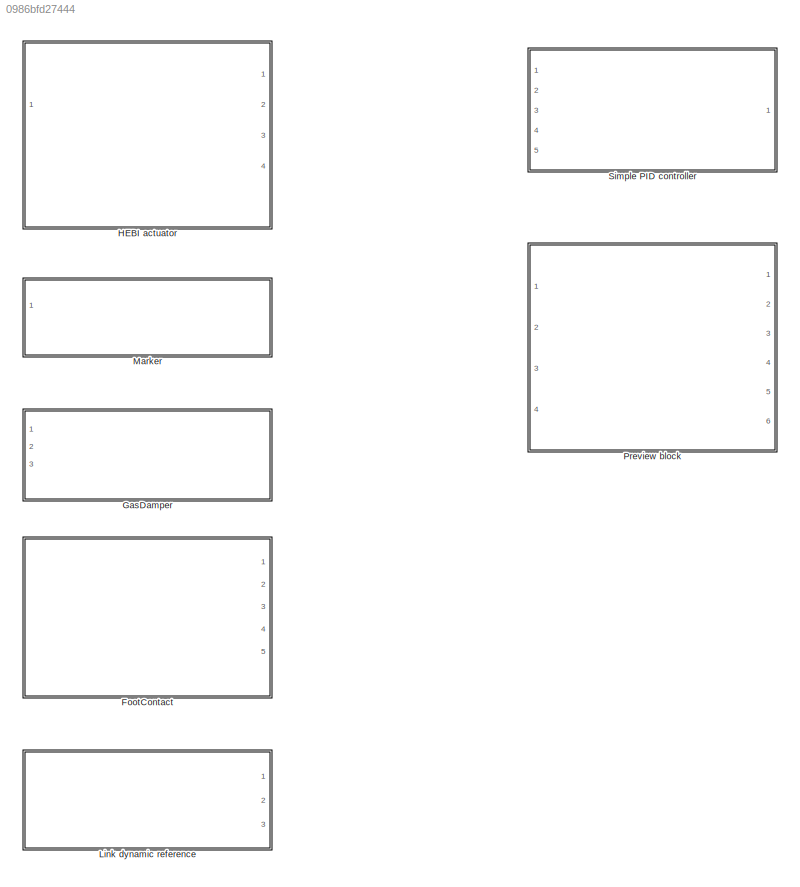
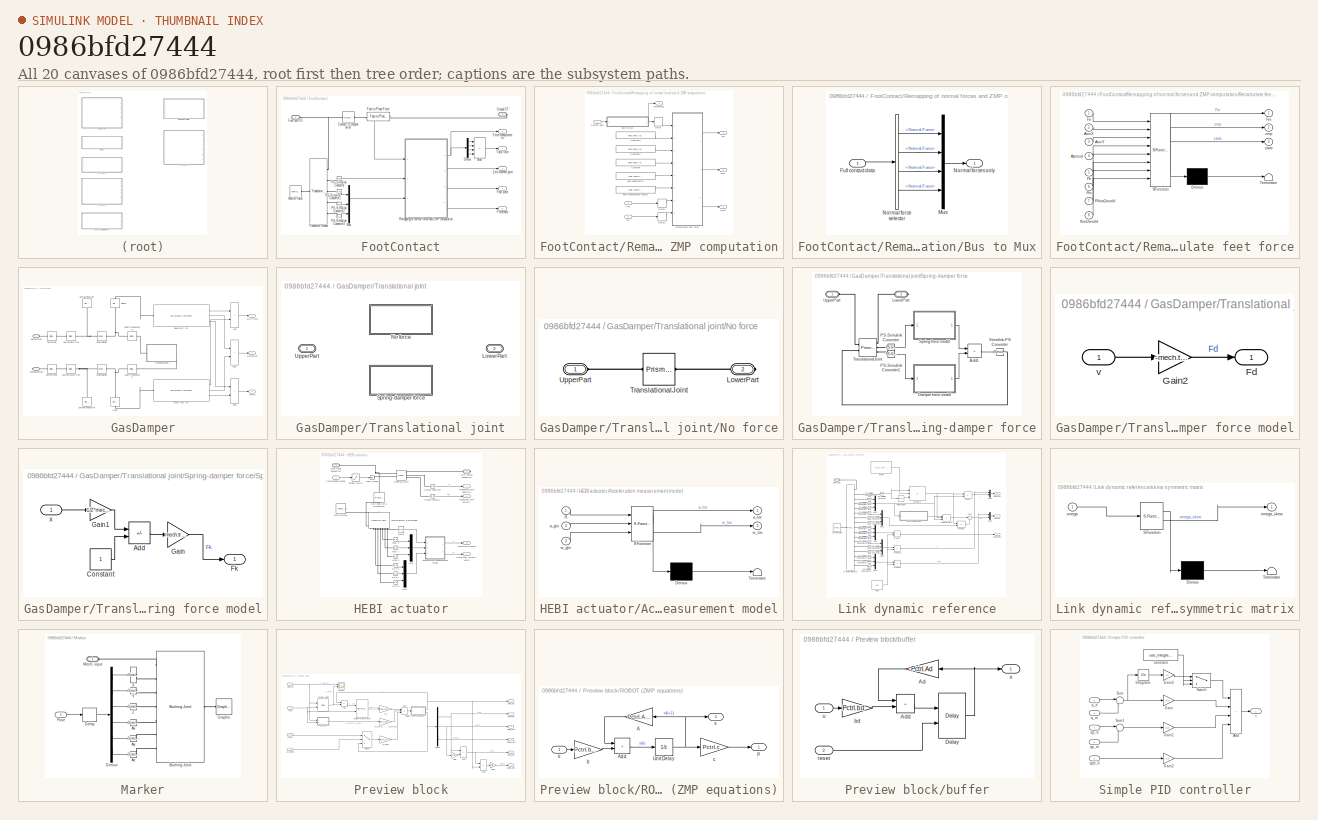
[diagram: thumbnail index - all 20 canvases of the model, root first then tree order]
MODEL slx_0986bfd27444
KIND library
CONFIG AbsTol = auto
CONFIG EnableMultiTasking = off
CONFIG FixedStep = auto
CONFIG MaxStep = auto
CONFIG MinStep = auto
CONFIG RelTol = 1e-3
CONFIG SampleTimeConstraint = Unconstrained
CONFIG SolverName = VariableStepAuto
CONFIG StartTime = 0.0
CONFIG StopTime = 10.0
BLOCK [SubSystem] FootContact
  Ports = [0, 5, 0, 0, 0, 1, 1]
  RequestExecContextInheritance = off
BLOCK [Sum] FootContact/Add
  IconShape = rectangular
  Inputs = 4
  Ports = [4, 1]
BLOCK [Reference] FootContact/ContactTfCompensation  REF=sm_lib/Frames and
Transforms/Rigid
Transform
  NameLocation = top
  Ports = [0, 0, 0, 0, 0, 1, 1]
  SourceBlock = sm_lib/Frames and\nTransforms/Rigid\nTransform
  SourceProductBaseCode = MS
  SourceType = Rigid\nTransform
BLOCK [Demux] FootContact/Demux
  Ports = [1, 4]
BLOCK [Reference] FootContact/Face to Plane Force  REF=Contact_Forces_Lib/3D/Composite
Forces/Face to Plane Force
  NameLocation = top
  Ports = [0, 1, 0, 0, 0, 1, 1]
  SourceBlock = Contact_Forces_Lib/3D/Composite\nForces/Face to Plane Force
  SourceProductName = Simscape Multibody Contact Forces Library
  SourceType = Face to Plane Force
BLOCK [PMIOPort] FootContact/Foot sole CF
  Side = Left
BLOCK [Outport] FootContact/Foot state
  Port = 4
BLOCK [Outport] FootContact/Force measurements
BLOCK [Outport] FootContact/Freference
  Port = 5
BLOCK [PMIOPort] FootContact/Ground CF
  Port = 2
  Side = Right
BLOCK [Mux] FootContact/Mux
  DisplayOption = bar
  Inputs = 3
  Ports = [3, 1]
BLOCK [Reference] FootContact/PS-Simulink Converter  REF=nesl_utility/PS-Simulink
Converter
  Ports = [0, 1, 0, 0, 0, 1]
  SourceBlock = nesl_utility/PS-Simulink\nConverter
  SourceProductName = Utilities
  SourceType = PS-Simulink\nConverter
BLOCK [Reference] FootContact/PS-Simulink Converter1  REF=nesl_utility/PS-Simulink
Converter
  Ports = [0, 1, 0, 0, 0, 1]
  SourceBlock = nesl_utility/PS-Simulink\nConverter
  SourceProductName = Utilities
  SourceType = PS-Simulink\nConverter
BLOCK [Reference] FootContact/PS-Simulink Converter2  REF=nesl_utility/PS-Simulink
Converter
  Ports = [0, 1, 0, 0, 0, 1]
  SourceBlock = nesl_utility/PS-Simulink\nConverter
  SourceProductName = Utilities
  SourceType = PS-Simulink\nConverter
BLOCK [Reference] FootContact/PS-Simulink Converter3  REF=nesl_utility/PS-Simulink
Converter
  Ports = [0, 1, 0, 0, 0, 1]
  SourceBlock = nesl_utility/PS-Simulink\nConverter
  SourceProductName = Utilities
  SourceType = PS-Simulink\nConverter
BLOCK [SubSystem] FootContact/Remapping of normal forces and ZMP computation
  Ports = [3, 4]
  RequestExecContextInheritance = off
BLOCK [SubSystem] FootContact/Remapping of normal forces and ZMP computation/Bus to Mux
  Ports = [1, 1]
  RequestExecContextInheritance = off
BLOCK [Inport] FootContact/Remapping of normal forces and ZMP computation/Bus to Mux/Full contact data
BLOCK [Mux] FootContact/Remapping of normal forces and ZMP computation/Bus to Mux/Mux
  DisplayOption = bar
  Ports = [4, 1]
BLOCK [BusSelector] FootContact/Remapping of normal forces and ZMP computation/Bus to Mux/Normal force selector
  OutputSignals = fz1.Normal Force,fz2.Normal Force,fz3.Normal Force,fz4.Normal Force
  Ports = [1, 4]
BLOCK [Outport] FootContact/Remapping of normal forces and ZMP computation/Bus to Mux/Normal forces only
BLOCK [Constant] FootContact/Remapping of normal forces and ZMP computation/Constant
  Value = foot.zmp.Ae.finv
BLOCK [Constant] FootContact/Remapping of normal forces and ZMP computation/Constant2
  Value = foot.zmp.Ae.yinv
BLOCK [Constant] FootContact/Remapping of normal forces and ZMP computation/Constant3
  Value = foot.zmp.Ae.xinv
BLOCK [Inport] FootContact/Remapping of normal forces and ZMP computation/Contact data
BLOCK [Delay] FootContact/Remapping of normal forces and ZMP computation/Delay
  DelayLength = 0
  InitialCondition = 0
  InputPortMap = u0
  Ports = [1, 1]
  SampleTime = Ts
BLOCK [Delay] FootContact/Remapping of normal forces and ZMP computation/Delay1
  DelayLength = 0
  InitialCondition = 0
  InputPortMap = u0
  Ports = [1, 1]
  SampleTime = Ts
BLOCK [Delay] FootContact/Remapping of normal forces and ZMP computation/Delay2
  DelayLength = 0
  InitialCondition = 0
  InputPortMap = u0
  Ports = [1, 1]
  SampleTime = Ts
BLOCK [Outport] FootContact/Remapping of normal forces and ZMP computation/Fm
BLOCK [Constant] FootContact/Remapping of normal forces and ZMP computation/Foot edge points
  Value = foot.fsen.Pedge
BLOCK [Constant] FootContact/Remapping of normal forces and ZMP computation/Foot measurement points
  Value = foot.fsen.Pmeas
BLOCK [Outport] FootContact/Remapping of normal forces and ZMP computation/Freference
  Port = 4
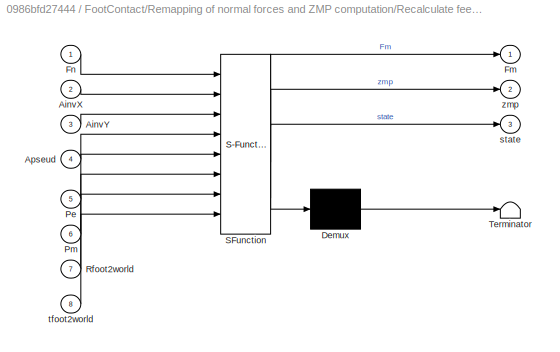
BLOCK [SubSystem] FootContact/Remapping of normal forces and ZMP computation/Recalculate feet force
  ErrorFcn = Stateflow.Translate.translate
  PermitHierarchicalResolution = ExplicitOnly
  Ports = [8, 3]
  RequestExecContextInheritance = off
  SFBlockType = MATLAB Function
  TreatAsAtomicUnit = on
BLOCK [Demux] FootContact/Remapping of normal forces and ZMP computation/Recalculate feet force/ Demux 
  Outputs = 1
  Ports = [1, 1]
BLOCK [S-Function] FootContact/Remapping of normal forces and ZMP computation/Recalculate feet force/ SFunction 
  EnableBusSupport = off
  FunctionName = sf_sfun
  PortCounts = [8 4]
  Ports = [8, 4]
  SFcnIsStateOwnerBlock = off
  SFunctionDeploymentMode = off
  Tag = Stateflow S-Function 1
BLOCK [Terminator] FootContact/Remapping of normal forces and ZMP computation/Recalculate feet force/ Terminator 
BLOCK [Inport] FootContact/Remapping of normal forces and ZMP computation/Recalculate feet force/AinvX
  Port = 2
BLOCK [Inport] FootContact/Remapping of normal forces and ZMP computation/Recalculate feet force/AinvY
  Port = 3
BLOCK [Inport] FootContact/Remapping of normal forces and ZMP computation/Recalculate feet force/Apseud
  Port = 4
BLOCK [Outport] FootContact/Remapping of normal forces and ZMP computation/Recalculate feet force/Fm
BLOCK [Inport] FootContact/Remapping of normal forces and ZMP computation/Recalculate feet force/Fn
BLOCK [Inport] FootContact/Remapping of normal forces and ZMP computation/Recalculate feet force/Pe
  Port = 5
BLOCK [Inport] FootContact/Remapping of normal forces and ZMP computation/Recalculate feet force/Pm
  Port = 6
BLOCK [Inport] FootContact/Remapping of normal forces and ZMP computation/Recalculate feet force/Rfoot2world
  Port = 7
BLOCK [Outport] FootContact/Remapping of normal forces and ZMP computation/Recalculate feet force/state
  Port = 3
BLOCK [Inport] FootContact/Remapping of normal forces and ZMP computation/Recalculate feet force/tfoot2world
  Port = 8
BLOCK [Outport] FootContact/Remapping of normal forces and ZMP computation/Recalculate feet force/zmp
  Port = 2
BLOCK [Inport] FootContact/Remapping of normal forces and ZMP computation/Rot
  Port = 2
BLOCK [Inport] FootContact/Remapping of normal forces and ZMP computation/Tra
  Port = 3
BLOCK [Outport] FootContact/Remapping of normal forces and ZMP computation/state
  Port = 3
BLOCK [Outport] FootContact/Remapping of normal forces and ZMP computation/zmp
  Port = 2
BLOCK [Outport] FootContact/Total force
  Port = 2
BLOCK [Reference] FootContact/Transform Sensor  REF=sm_lib/Frames and
Transforms/Transform
Sensor
  Ports = [0, 0, 0, 0, 0, 1, 5]
  SourceBlock = sm_lib/Frames and\nTransforms/Transform\nSensor
  SourceProductBaseCode = MS
  SourceType = Transform\nSensor
BLOCK [Reference] FootContact/World Frame  REF=sm_lib/Frames and
Transforms/World Frame
  Ports = [0, 0, 0, 0, 0, 0, 1]
  SourceBlock = sm_lib/Frames and\nTransforms/World Frame
  SourceProductBaseCode = MS
  SourceType = World Frame
BLOCK [Outport] FootContact/Zero moment point
  Port = 3
BLOCK [SubSystem] GasDamper
  Ports = [0, 3, 0, 0, 0, 1, 1]
  RequestExecContextInheritance = off
BLOCK [Sum] GasDamper/Add
  IconShape = rectangular
  Ports = [2, 1]
BLOCK [Sum] GasDamper/Add1
  IconShape = rectangular
  Ports = [2, 1]
BLOCK [Sum] GasDamper/Add2
  IconShape = rectangular
  Ports = [2, 1]
BLOCK [Outport] GasDamper/COM-mass
BLOCK [Reference] GasDamper/DamperHip  REF=sm_lib/Frames and
Transforms/Rigid
Transform
  Ports = [0, 0, 0, 0, 0, 1, 1]
  SourceBlock = sm_lib/Frames and\nTransforms/Rigid\nTransform
  SourceProductBaseCode = MS
  SourceType = Rigid\nTransform
BLOCK [Reference] GasDamper/DamperHipOffset  REF=sm_lib/Frames and
Transforms/Rigid
Transform
  Ports = [0, 0, 0, 0, 0, 1, 1]
  SourceBlock = sm_lib/Frames and\nTransforms/Rigid\nTransform
  SourceProductBaseCode = MS
  SourceType = Rigid\nTransform
BLOCK [Reference] GasDamper/DamperHipScrew  REF=sm_lib/Body Elements/File Solid
  NameLocation = left
  Ports = [0, 0, 0, 0, 0, 0, 1]
  SourceBlock = sm_lib/Body Elements/File Solid
  SourceProductBaseCode = MS
  SourceType = File Solid
BLOCK [Reference] GasDamper/DamperKnee  REF=sm_lib/Frames and
Transforms/Rigid
Transform
  Ports = [0, 0, 0, 0, 0, 1, 1]
  SourceBlock = sm_lib/Frames and\nTransforms/Rigid\nTransform
  SourceProductBaseCode = MS
  SourceType = Rigid\nTransform
BLOCK [Reference] GasDamper/DamperKneeOffset  REF=sm_lib/Frames and
Transforms/Rigid
Transform
  Ports = [0, 0, 0, 0, 0, 1, 1]
  SourceBlock = sm_lib/Frames and\nTransforms/Rigid\nTransform
  SourceProductBaseCode = MS
  SourceType = Rigid\nTransform
BLOCK [Reference] GasDamper/DamperKneeScrew  REF=sm_lib/Body Elements/File Solid
  NameLocation = left
  Ports = [0, 0, 0, 0, 0, 0, 1]
  SourceBlock = sm_lib/Body Elements/File Solid
  SourceProductBaseCode = MS
  SourceType = File Solid
BLOCK [Outport] GasDamper/Forces
  Port = 3
BLOCK [PMIOPort] GasDamper/HipConnection
  Side = Left
BLOCK [Reference] GasDamper/Insert  REF=sm_lib/Body Elements/File Solid
  NameLocation = right
  Ports = [0, 0, 0, 0, 0, 1, 1]
  SourceBlock = sm_lib/Body Elements/File Solid
  SourceProductBaseCode = MS
  SourceType = File Solid
BLOCK [Reference] GasDamper/Insert dyn. ref.  REF=$bdroot/Link dynamic reference
  Ports = [0, 3, 0, 0, 0, 1]
  SourceBlock = $bdroot/Link dynamic reference
BLOCK [PMIOPort] GasDamper/KneeConnection
  NameLocation = top
  Port = 2
  Side = Right
BLOCK [Reference] GasDamper/LowerBallJoint  REF=sm_lib/Joints/Spherical
Joint
  Ports = [0, 0, 0, 0, 0, 1, 1]
  SourceBlock = sm_lib/Joints/Spherical\nJoint
  SourceProductBaseCode = MS
  SourceType = Spherical\nJoint
BLOCK [Reference] GasDamper/LowerTranslationalTf  REF=sm_lib/Frames and
Transforms/Rigid
Transform
  Ports = [0, 0, 0, 0, 0, 1, 1]
  SourceBlock = sm_lib/Frames and\nTransforms/Rigid\nTransform
  SourceProductBaseCode = MS
  SourceType = Rigid\nTransform
BLOCK [Outport] GasDamper/Momentum
  Port = 2
BLOCK [Reference] GasDamper/Sleeve  REF=sm_lib/Body Elements/File Solid
  NameLocation = right
  Ports = [0, 0, 0, 0, 0, 1, 1]
  SourceBlock = sm_lib/Body Elements/File Solid
  SourceProductBaseCode = MS
  SourceType = File Solid
BLOCK [Reference] GasDamper/Sleeve dyn. ref.  REF=$bdroot/Link dynamic reference
  Ports = [0, 3, 0, 0, 0, 1]
  SourceBlock = $bdroot/Link dynamic reference
BLOCK [SubSystem] GasDamper/Translational joint
  Ports = [0, 0, 0, 0, 0, 1, 1]
  RequestExecContextInheritance = off
  Variant = on
BLOCK [PMIOPort] GasDamper/Translational joint/LowerPart
  Port = 2
  Side = Right
BLOCK [SubSystem] GasDamper/Translational joint/No force
  Ports = [0, 0, 0, 0, 0, 1, 1]
  RequestExecContextInheritance = off
  VariantControl = simulate_gas_sd == 0
BLOCK [PMIOPort] GasDamper/Translational joint/No force/LowerPart
  Port = 2
  Side = Right
BLOCK [Reference] GasDamper/Translational joint/No force/TranslationalJoint  REF=sm_lib/Joints/Prismatic
Joint
  NameLocation = top
  Ports = [0, 0, 0, 0, 0, 1, 1]
  SourceBlock = sm_lib/Joints/Prismatic\nJoint
  SourceProductBaseCode = MS
  SourceType = Prismatic\nJoint
BLOCK [PMIOPort] GasDamper/Translational joint/No force/UpperPart
  Side = Left
BLOCK [SubSystem] GasDamper/Translational joint/Spring-damper force
  Ports = [0, 0, 0, 0, 0, 1, 1]
  RequestExecContextInheritance = off
  VariantControl = simulate_gas_sd == 1
BLOCK [Sum] GasDamper/Translational joint/Spring-damper force/Add1
  IconShape = rectangular
  Ports = [2, 1]
BLOCK [SubSystem] GasDamper/Translational joint/Spring-damper force/Damper force model
  Ports = [1, 1]
  RequestExecContextInheritance = off
BLOCK [Outport] GasDamper/Translational joint/Spring-damper force/Damper force model/Fd
BLOCK [Gain] GasDamper/Translational joint/Spring-damper force/Damper force model/Gain2
  Gain = -mech.tra.mod.D
BLOCK [Inport] GasDamper/Translational joint/Spring-damper force/Damper force model/v
BLOCK [PMIOPort] GasDamper/Translational joint/Spring-damper force/LowerPart
  Port = 2
  Side = Right
BLOCK [Reference] GasDamper/Translational joint/Spring-damper force/PS-Simulink Converter  REF=nesl_utility/PS-Simulink
Converter
  Ports = [0, 1, 0, 0, 0, 1]
  SourceBlock = nesl_utility/PS-Simulink\nConverter
  SourceProductName = Utilities
  SourceType = PS-Simulink\nConverter
BLOCK [Reference] GasDamper/Translational joint/Spring-damper force/PS-Simulink Converter1  REF=nesl_utility/PS-Simulink
Converter
  Ports = [0, 1, 0, 0, 0, 1]
  SourceBlock = nesl_utility/PS-Simulink\nConverter
  SourceProductName = Utilities
  SourceType = PS-Simulink\nConverter
BLOCK [Reference] GasDamper/Translational joint/Spring-damper force/Simulink-PS Converter  REF=nesl_utility/Simulink-PS
Converter
  Ports = [1, 0, 0, 0, 0, 0, 1]
  SourceBlock = nesl_utility/Simulink-PS\nConverter
  SourceProductName = Utilities
  SourceType = Simulink-PS\nConverter
BLOCK [SubSystem] GasDamper/Translational joint/Spring-damper force/Spring force model
  Ports = [1, 1]
  RequestExecContextInheritance = off
BLOCK [Sum] GasDamper/Translational joint/Spring-damper force/Spring force model/Add
  IconShape = rectangular
  Inputs = -+
  Ports = [2, 1]
BLOCK [Constant] GasDamper/Translational joint/Spring-damper force/Spring force model/Constant
BLOCK [Outport] GasDamper/Translational joint/Spring-damper force/Spring force model/Fk
BLOCK [Gain] GasDamper/Translational joint/Spring-damper force/Spring force model/Gain
  Gain = mech.tra.mod.F0
BLOCK [Gain] GasDamper/Translational joint/Spring-damper force/Spring force model/Gain1
  Gain = 1/2*mech.tra.mod.L0
BLOCK [Inport] GasDamper/Translational joint/Spring-damper force/Spring force model/x
BLOCK [Reference] GasDamper/Translational joint/Spring-damper force/TranslationalJoint  REF=sm_lib/Joints/Prismatic
Joint
  Ports = [0, 0, 0, 0, 0, 2, 3]
  SourceBlock = sm_lib/Joints/Prismatic\nJoint
  SourceProductBaseCode = MS
  SourceType = Prismatic\nJoint
BLOCK [PMIOPort] GasDamper/Translational joint/Spring-damper force/UpperPart
  Side = Left
BLOCK [PMIOPort] GasDamper/Translational joint/UpperPart
  Side = Left
BLOCK [Reference] GasDamper/UpperBallJoint  REF=sm_lib/Joints/Spherical
Joint
  Ports = [0, 0, 0, 0, 0, 1, 1]
  SourceBlock = sm_lib/Joints/Spherical\nJoint
  SourceProductBaseCode = MS
  SourceType = Spherical\nJoint
BLOCK [Reference] GasDamper/UpperTranslationalTf  REF=sm_lib/Frames and
Transforms/Rigid
Transform
  Ports = [0, 0, 0, 0, 0, 1, 1]
  SourceBlock = sm_lib/Frames and\nTransforms/Rigid\nTransform
  SourceProductBaseCode = MS
  SourceType = Rigid\nTransform
BLOCK [SubSystem] HEBI actuator
  Ports = [1, 4, 0, 0, 0, 1, 1]
  RequestExecContextInheritance = off
BLOCK [Reference] HEBI actuator/Accel x  REF=nesl_utility/PS-Simulink
Converter
  Ports = [0, 1, 0, 0, 0, 1]
  SourceBlock = nesl_utility/PS-Simulink\nConverter
  SourceProductName = Utilities
  SourceType = PS-Simulink\nConverter
BLOCK [Reference] HEBI actuator/Accel y  REF=nesl_utility/PS-Simulink
Converter
  Ports = [0, 1, 0, 0, 0, 1]
  SourceBlock = nesl_utility/PS-Simulink\nConverter
  SourceProductName = Utilities
  SourceType = PS-Simulink\nConverter
BLOCK [Reference] HEBI actuator/Accel z  REF=nesl_utility/PS-Simulink
Converter
  Ports = [0, 1, 0, 0, 0, 1]
  SourceBlock = nesl_utility/PS-Simulink\nConverter
  SourceProductName = Utilities
  SourceType = PS-Simulink\nConverter
BLOCK [SubSystem] HEBI actuator/Acceleration measurement model
  ErrorFcn = Stateflow.Translate.translate
  PermitHierarchicalResolution = ExplicitOnly
  Ports = [3, 2]
  RequestExecContextInheritance = off
  SFBlockType = MATLAB Function
  TreatAsAtomicUnit = on
BLOCK [Demux] HEBI actuator/Acceleration measurement model/ Demux 
  Outputs = 1
  Ports = [1, 1]
BLOCK [S-Function] HEBI actuator/Acceleration measurement model/ SFunction 
  EnableBusSupport = off
  FunctionName = sf_sfun
  PortCounts = [3 3]
  Ports = [3, 3]
  SFcnIsStateOwnerBlock = off
  SFunctionDeploymentMode = off
  Tag = Stateflow S-Function 2
BLOCK [Terminator] HEBI actuator/Acceleration measurement model/ Terminator 
BLOCK [Inport] HEBI actuator/Acceleration measurement model/R
BLOCK [Inport] HEBI actuator/Acceleration measurement model/a_glo
  Port = 2
BLOCK [Outport] HEBI actuator/Acceleration measurement model/a_loc
BLOCK [Inport] HEBI actuator/Acceleration measurement model/w_glo
  Port = 3
BLOCK [Outport] HEBI actuator/Acceleration measurement model/w_loc
  Port = 2
BLOCK [Outport] HEBI actuator/Acceleration vector
  Port = 3
BLOCK [Reference] HEBI actuator/Accelerometer & gyroscope  REF=sm_lib/Frames and
Transforms/Transform
Sensor
  NameLocation = right
  Ports = [0, 0, 0, 0, 0, 1, 8]
  SourceBlock = sm_lib/Frames and\nTransforms/Transform\nSensor
  SourceProductBaseCode = MS
  SourceType = Transform\nSensor
BLOCK [Inport] HEBI actuator/Commanded torque
  NameLocation = top
BLOCK [Reference] HEBI actuator/Gyro x  REF=nesl_utility/PS-Simulink
Converter
  Ports = [0, 1, 0, 0, 0, 1]
  SourceBlock = nesl_utility/PS-Simulink\nConverter
  SourceProductName = Utilities
  SourceType = PS-Simulink\nConverter
BLOCK [Reference] HEBI actuator/Gyro y  REF=nesl_utility/PS-Simulink
Converter
  Ports = [0, 1, 0, 0, 0, 1]
  SourceBlock = nesl_utility/PS-Simulink\nConverter
  SourceProductName = Utilities
  SourceType = PS-Simulink\nConverter
BLOCK [Reference] HEBI actuator/Gyro z  REF=nesl_utility/PS-Simulink
Converter
  Ports = [0, 1, 0, 0, 0, 1]
  SourceBlock = nesl_utility/PS-Simulink\nConverter
  SourceProductName = Utilities
  SourceType = PS-Simulink\nConverter
BLOCK [Reference] HEBI actuator/IMU position & orientation  REF=sm_lib/Frames and
Transforms/Rigid
Transform
  NameLocation = left
  Ports = [0, 0, 0, 0, 0, 1, 1]
  SourceBlock = sm_lib/Frames and\nTransforms/Rigid\nTransform
  SourceProductBaseCode = MS
  SourceType = Rigid\nTransform
BLOCK [Reference] HEBI actuator/Input torque  REF=nesl_utility/Simulink-PS
Converter
  Ports = [1, 0, 0, 0, 0, 0, 1]
  SourceBlock = nesl_utility/Simulink-PS\nConverter
  SourceProductName = Utilities
  SourceType = Simulink-PS\nConverter
BLOCK [PMIOPort] HEBI actuator/Joint input connection
  NameLocation = top
  Side = Left
BLOCK [PMIOPort] HEBI actuator/Joint output connection
  NameLocation = top
  Port = 2
  Side = Right
BLOCK [Outport] HEBI actuator/Measured joint position
BLOCK [Outport] HEBI actuator/Measured joint velocity
  Port = 2
BLOCK [Mux] HEBI actuator/Mux
  DisplayOption = bar
  Inputs = 3
  Ports = [3, 1]
BLOCK [Mux] HEBI actuator/Mux1
  DisplayOption = bar
  Inputs = 3
  Ports = [3, 1]
BLOCK [Reference] HEBI actuator/Output position  REF=nesl_utility/PS-Simulink
Converter
  Ports = [0, 1, 0, 0, 0, 1]
  SourceBlock = nesl_utility/PS-Simulink\nConverter
  SourceProductName = Utilities
  SourceType = PS-Simulink\nConverter
BLOCK [Reference] HEBI actuator/Output velocity  REF=nesl_utility/PS-Simulink
Converter
  Ports = [0, 1, 0, 0, 0, 1]
  SourceBlock = nesl_utility/PS-Simulink\nConverter
  SourceProductName = Utilities
  SourceType = PS-Simulink\nConverter
BLOCK [Reference] HEBI actuator/Revolute Joint  REF=sm_lib/Joints/Revolute Joint
  Ports = [0, 0, 0, 0, 0, 2, 3]
  SourceBlock = sm_lib/Joints/Revolute Joint
  SourceProductBaseCode = MS
  SourceType = Revolute Joint
BLOCK [Reference] HEBI actuator/RotM  REF=nesl_utility/PS-Simulink
Converter
  Ports = [0, 1, 0, 0, 0, 1]
  SourceBlock = nesl_utility/PS-Simulink\nConverter
  SourceProductName = Utilities
  SourceType = PS-Simulink\nConverter
BLOCK [Outport] HEBI actuator/Rotational velocity vector
  Port = 4
BLOCK [Saturate] HEBI actuator/Torque limits
  LowerLimit = -Tmax
  UpperLimit = Tmax
BLOCK [Reference] HEBI actuator/World Frame  REF=sm_lib/Frames and
Transforms/World Frame
  Ports = [0, 0, 0, 0, 0, 0, 1]
  SourceBlock = sm_lib/Frames and\nTransforms/World Frame
  SourceProductBaseCode = MS
  SourceType = World Frame
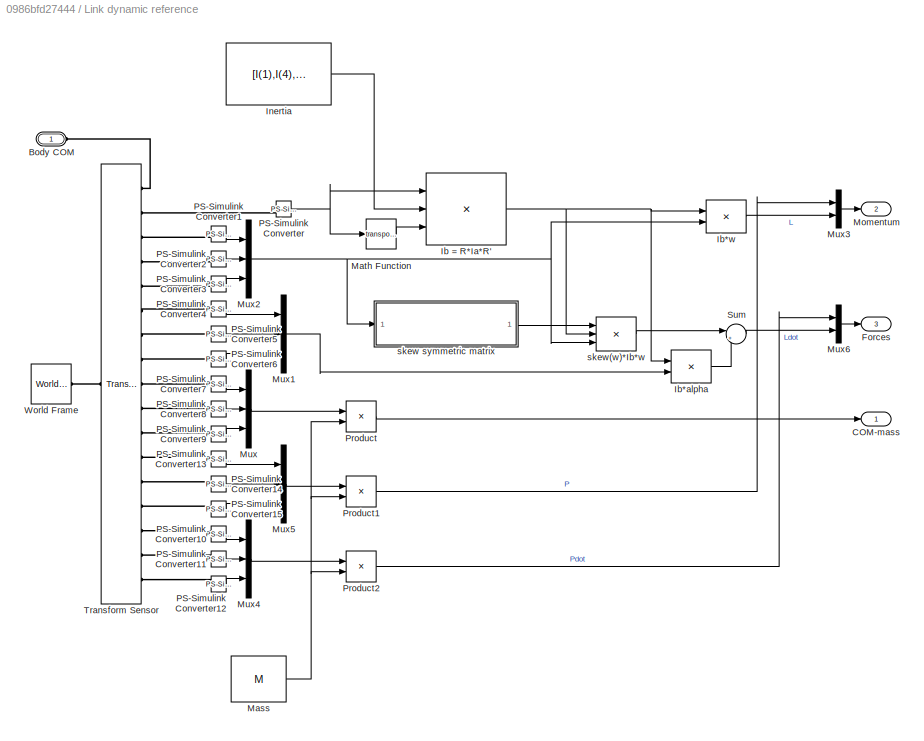
BLOCK [SubSystem] Link dynamic reference
  Ports = [0, 3, 0, 0, 0, 1]
  RequestExecContextInheritance = off
BLOCK [PMIOPort] Link dynamic reference/Body COM
  NameLocation = top
  Side = Left
BLOCK [Outport] Link dynamic reference/COM-mass
BLOCK [Outport] Link dynamic reference/Forces
  Port = 3
BLOCK [Product] Link dynamic reference/Ib = R*Ia*R'
  Inputs = ***
  Multiplication = Matrix(*)
  Ports = [3, 1]
BLOCK [Product] Link dynamic reference/Ib*alpha
  Multiplication = Matrix(*)
  Ports = [2, 1]
BLOCK [Product] Link dynamic reference/Ib*w
  Multiplication = Matrix(*)
  Ports = [2, 1]
BLOCK [Constant] Link dynamic reference/Inertia
  Value = [I(1),I(4),I(5);I(4),I(2),I(6);I(5),I(6),I(3)]
BLOCK [Constant] Link dynamic reference/Mass
  Value = M
BLOCK [Math] Link dynamic reference/Math Function
  Operator = transpose
  Ports = [1, 1]
BLOCK [Outport] Link dynamic reference/Momentum
  Port = 2
BLOCK [Mux] Link dynamic reference/Mux
  DisplayOption = bar
  Inputs = 3
  Ports = [3, 1]
BLOCK [Mux] Link dynamic reference/Mux1
  DisplayOption = bar
  Inputs = 3
  Ports = [3, 1]
BLOCK [Mux] Link dynamic reference/Mux2
  DisplayOption = bar
  Inputs = 3
  Ports = [3, 1]
BLOCK [Mux] Link dynamic reference/Mux3
  DisplayOption = bar
  Inputs = 2
  Ports = [2, 1]
BLOCK [Mux] Link dynamic reference/Mux4
  DisplayOption = bar
  Inputs = 3
  Ports = [3, 1]
BLOCK [Mux] Link dynamic reference/Mux5
  DisplayOption = bar
  Inputs = 3
  Ports = [3, 1]
BLOCK [Mux] Link dynamic reference/Mux6
  DisplayOption = bar
  Inputs = 2
  Ports = [2, 1]
BLOCK [Reference] Link dynamic reference/PS-Simulink Converter  REF=nesl_utility/PS-Simulink
Converter
  Ports = [0, 1, 0, 0, 0, 1]
  SourceBlock = nesl_utility/PS-Simulink\nConverter
  SourceProductName = Utilities
  SourceType = PS-Simulink\nConverter
BLOCK [Reference] Link dynamic reference/PS-Simulink Converter1  REF=nesl_utility/PS-Simulink
Converter
  Ports = [0, 1, 0, 0, 0, 1]
  SourceBlock = nesl_utility/PS-Simulink\nConverter
  SourceProductName = Utilities
  SourceType = PS-Simulink\nConverter
BLOCK [Reference] Link dynamic reference/PS-Simulink Converter10  REF=nesl_utility/PS-Simulink
Converter
  Ports = [0, 1, 0, 0, 0, 1]
  SourceBlock = nesl_utility/PS-Simulink\nConverter
  SourceProductName = Utilities
  SourceType = PS-Simulink\nConverter
BLOCK [Reference] Link dynamic reference/PS-Simulink Converter11  REF=nesl_utility/PS-Simulink
Converter
  Ports = [0, 1, 0, 0, 0, 1]
  SourceBlock = nesl_utility/PS-Simulink\nConverter
  SourceProductName = Utilities
  SourceType = PS-Simulink\nConverter
BLOCK [Reference] Link dynamic reference/PS-Simulink Converter12  REF=nesl_utility/PS-Simulink
Converter
  Ports = [0, 1, 0, 0, 0, 1]
  SourceBlock = nesl_utility/PS-Simulink\nConverter
  SourceProductName = Utilities
  SourceType = PS-Simulink\nConverter
BLOCK [Reference] Link dynamic reference/PS-Simulink Converter13  REF=nesl_utility/PS-Simulink
Converter
  Ports = [0, 1, 0, 0, 0, 1]
  SourceBlock = nesl_utility/PS-Simulink\nConverter
  SourceProductName = Utilities
  SourceType = PS-Simulink\nConverter
BLOCK [Reference] Link dynamic reference/PS-Simulink Converter14  REF=nesl_utility/PS-Simulink
Converter
  Ports = [0, 1, 0, 0, 0, 1]
  SourceBlock = nesl_utility/PS-Simulink\nConverter
  SourceProductName = Utilities
  SourceType = PS-Simulink\nConverter
BLOCK [Reference] Link dynamic reference/PS-Simulink Converter15  REF=nesl_utility/PS-Simulink
Converter
  Ports = [0, 1, 0, 0, 0, 1]
  SourceBlock = nesl_utility/PS-Simulink\nConverter
  SourceProductName = Utilities
  SourceType = PS-Simulink\nConverter
BLOCK [Reference] Link dynamic reference/PS-Simulink Converter2  REF=nesl_utility/PS-Simulink
Converter
  Ports = [0, 1, 0, 0, 0, 1]
  SourceBlock = nesl_utility/PS-Simulink\nConverter
  SourceProductName = Utilities
  SourceType = PS-Simulink\nConverter
BLOCK [Reference] Link dynamic reference/PS-Simulink Converter3  REF=nesl_utility/PS-Simulink
Converter
  Ports = [0, 1, 0, 0, 0, 1]
  SourceBlock = nesl_utility/PS-Simulink\nConverter
  SourceProductName = Utilities
  SourceType = PS-Simulink\nConverter
BLOCK [Reference] Link dynamic reference/PS-Simulink Converter4  REF=nesl_utility/PS-Simulink
Converter
  Ports = [0, 1, 0, 0, 0, 1]
  SourceBlock = nesl_utility/PS-Simulink\nConverter
  SourceProductName = Utilities
  SourceType = PS-Simulink\nConverter
BLOCK [Reference] Link dynamic reference/PS-Simulink Converter5  REF=nesl_utility/PS-Simulink
Converter
  Ports = [0, 1, 0, 0, 0, 1]
  SourceBlock = nesl_utility/PS-Simulink\nConverter
  SourceProductName = Utilities
  SourceType = PS-Simulink\nConverter
BLOCK [Reference] Link dynamic reference/PS-Simulink Converter6  REF=nesl_utility/PS-Simulink
Converter
  Ports = [0, 1, 0, 0, 0, 1]
  SourceBlock = nesl_utility/PS-Simulink\nConverter
  SourceProductName = Utilities
  SourceType = PS-Simulink\nConverter
BLOCK [Reference] Link dynamic reference/PS-Simulink Converter7  REF=nesl_utility/PS-Simulink
Converter
  Ports = [0, 1, 0, 0, 0, 1]
  SourceBlock = nesl_utility/PS-Simulink\nConverter
  SourceProductName = Utilities
  SourceType = PS-Simulink\nConverter
BLOCK [Reference] Link dynamic reference/PS-Simulink Converter8  REF=nesl_utility/PS-Simulink
Converter
  Ports = [0, 1, 0, 0, 0, 1]
  SourceBlock = nesl_utility/PS-Simulink\nConverter
  SourceProductName = Utilities
  SourceType = PS-Simulink\nConverter
BLOCK [Reference] Link dynamic reference/PS-Simulink Converter9  REF=nesl_utility/PS-Simulink
Converter
  Ports = [0, 1, 0, 0, 0, 1]
  SourceBlock = nesl_utility/PS-Simulink\nConverter
  SourceProductName = Utilities
  SourceType = PS-Simulink\nConverter
BLOCK [Product] Link dynamic reference/Product
  Ports = [2, 1]
BLOCK [Product] Link dynamic reference/Product1
  Ports = [2, 1]
BLOCK [Product] Link dynamic reference/Product2
  Ports = [2, 1]
BLOCK [Sum] Link dynamic reference/Sum
  Inputs = |++
  Ports = [2, 1]
BLOCK [Reference] Link dynamic reference/Transform Sensor  REF=sm_lib/Frames and
Transforms/Transform
Sensor
  Ports = [0, 0, 0, 0, 0, 1, 17]
  SourceBlock = sm_lib/Frames and\nTransforms/Transform\nSensor
  SourceProductBaseCode = MS
  SourceType = Transform\nSensor
BLOCK [Reference] Link dynamic reference/World Frame  REF=sm_lib/Frames and
Transforms/World Frame
  Ports = [0, 0, 0, 0, 0, 0, 1]
  SourceBlock = sm_lib/Frames and\nTransforms/World Frame
  SourceProductBaseCode = MS
  SourceType = World Frame
BLOCK [SubSystem] Link dynamic reference/skew symmetric matrix
  ErrorFcn = Stateflow.Translate.translate
  PermitHierarchicalResolution = ExplicitOnly
  Ports = [1, 1]
  RequestExecContextInheritance = off
  SFBlockType = MATLAB Function
  TreatAsAtomicUnit = on
BLOCK [Demux] Link dynamic reference/skew symmetric matrix/ Demux 
  Outputs = 1
  Ports = [1, 1]
BLOCK [S-Function] Link dynamic reference/skew symmetric matrix/ SFunction 
  EnableBusSupport = off
  FunctionName = sf_sfun
  PortCounts = [1 2]
  Ports = [1, 2]
  SFcnIsStateOwnerBlock = off
  SFunctionDeploymentMode = off
  Tag = Stateflow S-Function 3
BLOCK [Terminator] Link dynamic reference/skew symmetric matrix/ Terminator 
BLOCK [Inport] Link dynamic reference/skew symmetric matrix/omega
BLOCK [Outport] Link dynamic reference/skew symmetric matrix/omega_skew
BLOCK [Product] Link dynamic reference/skew(w)*Ib*w
  Inputs = 3
  Multiplication = Matrix(*)
  Ports = [3, 1]
BLOCK [SubSystem] Marker
  Ports = [1, 0, 0, 0, 0, 1]
  RequestExecContextInheritance = off
BLOCK [Reference] Marker/Ax  REF=nesl_utility/Simulink-PS
Converter
  Ports = [1, 0, 0, 0, 0, 0, 1]
  SourceBlock = nesl_utility/Simulink-PS\nConverter
  SourceProductName = Utilities
  SourceType = Simulink-PS\nConverter
BLOCK [Reference] Marker/Ay  REF=nesl_utility/Simulink-PS
Converter
  Ports = [1, 0, 0, 0, 0, 0, 1]
  SourceBlock = nesl_utility/Simulink-PS\nConverter
  SourceProductName = Utilities
  SourceType = Simulink-PS\nConverter
BLOCK [Reference] Marker/Az  REF=nesl_utility/Simulink-PS
Converter
  Ports = [1, 0, 0, 0, 0, 0, 1]
  SourceBlock = nesl_utility/Simulink-PS\nConverter
  SourceProductName = Utilities
  SourceType = Simulink-PS\nConverter
BLOCK [Reference] Marker/Bushing Joint  REF=sm_lib/Joints/Bushing Joint
  Ports = [0, 0, 0, 0, 0, 7, 1]
  SourceBlock = sm_lib/Joints/Bushing Joint
  SourceProductBaseCode = MS
  SourceType = Bushing Joint
BLOCK [Delay] Marker/Delay
  DelayLength = 1
  InitialCondition = 0
  InputPortMap = u0
  Ports = [1, 1]
  SampleTime = Ts/10
BLOCK [Demux] Marker/Demux
  Outputs = 6
  Ports = [1, 6]
BLOCK [Reference] Marker/Graphic  REF=sm_lib/Body Elements/Graphic
  NameLocation = top
  Ports = [0, 0, 0, 0, 0, 0, 1]
  SourceBlock = sm_lib/Body Elements/Graphic
  SourceProductBaseCode = MS
  SourceType = Graphic
BLOCK [PMIOPort] Marker/Mech. input
  NameLocation = top
  Side = Left
BLOCK [Inport] Marker/Pose
BLOCK [Reference] Marker/X  REF=nesl_utility/Simulink-PS
Converter
  Ports = [1, 0, 0, 0, 0, 0, 1]
  SourceBlock = nesl_utility/Simulink-PS\nConverter
  SourceProductName = Utilities
  SourceType = Simulink-PS\nConverter
BLOCK [Reference] Marker/Y  REF=nesl_utility/Simulink-PS
Converter
  Ports = [1, 0, 0, 0, 0, 0, 1]
  SourceBlock = nesl_utility/Simulink-PS\nConverter
  SourceProductName = Utilities
  SourceType = Simulink-PS\nConverter
BLOCK [Reference] Marker/Z  REF=nesl_utility/Simulink-PS
Converter
  Ports = [1, 0, 0, 0, 0, 0, 1]
  SourceBlock = nesl_utility/Simulink-PS\nConverter
  SourceProductName = Utilities
  SourceType = Simulink-PS\nConverter
BLOCK [SubSystem] Preview block
  Ports = [4, 6]
  RequestExecContextInheritance = off
BLOCK [Sum] Preview block/Add
  IconShape = rectangular
  Inputs = +-
  Ports = [2, 1]
BLOCK [Sum] Preview block/Add1
  IconShape = rectangular
  Inputs = ---
  Ports = [3, 1]
BLOCK [Sum] Preview block/Add2
  IconShape = rectangular
  Ports = [2, 1]
BLOCK [Sum] Preview block/Add3
  IconShape = rectangular
  Inputs = +-
  Ports = [2, 1]
BLOCK [Outport] Preview block/COM_des
  Port = 2
BLOCK [Outport] Preview block/COMp_des
  Port = 3
BLOCK [Outport] Preview block/COMpp_des
  Port = 4
BLOCK [Inport] Preview block/Com_m
  Port = 3
BLOCK [Outport] Preview block/DCM_des
  Port = 5
BLOCK [Outport] Preview block/DCMp_des
  Port = 6
BLOCK [Demux] Preview block/Demux
  Outputs = 3
  Ports = [1, 3]
BLOCK [Gain] Preview block/Gain
  Gain = 1/Pctrl.par.omega
BLOCK [Gain] Preview block/Gain1
  Gain = Pctrl.par.omega
BLOCK [Delay] Preview block/Integer Delay
  DelayLength = Pctrl.N_L
  ExternalReset = Rising
  InitialCondition = zeros(Pctrl.N_L,1)
  InputPortMap = u0,r5
  NameLocation = top
  Ports = [2, 1]
  SampleTime = Pctrl.Ts
BLOCK [Gain] Preview block/K_delta
  Gain = Pctrl.Gx
  Multiplication = Matrix(K*u)
BLOCK [Gain] Preview block/K_e
  Gain = Pctrl.Gi
  Multiplication = Matrix(K*u)
BLOCK [SubSystem] Preview block/ROBOT (ZMP equations)
  Ports = [1, 2]
  RequestExecContextInheritance = off
BLOCK [Gain] Preview block/ROBOT (ZMP equations)/A
  Gain = Pctrl.A_d
  Multiplication = Matrix(K*u)
BLOCK [Sum] Preview block/ROBOT (ZMP equations)/Add
  IconShape = rectangular
  Ports = [2, 1]
BLOCK [UnitDelay] Preview block/ROBOT (ZMP equations)/Unit Delay
  HasFrameUpgradeWarning = on
  InitialCondition = [0,0,0]
  SampleTime = Pctrl.Ts
BLOCK [Gain] Preview block/ROBOT (ZMP equations)/b
  Gain = Pctrl.b_d
  Multiplication = Matrix(K*u)
BLOCK [Gain] Preview block/ROBOT (ZMP equations)/c
  Gain = Pctrl.c
  Multiplication = Matrix(K*u)
BLOCK [Outport] Preview block/ROBOT (ZMP equations)/p
BLOCK [Inport] Preview block/ROBOT (ZMP equations)/u
BLOCK [Outport] Preview block/ROBOT (ZMP equations)/x
  Port = 2
BLOCK [Scope] Preview block/Scope1
  Floating = off
  NumInputPorts = 2
  Ports = [2]
  ScopeSpecificationString = Simulink.scopes.TimeScopeBlockCfg('CurrentConfiguration', extmgr.ConfigurationSet(extmgr.Configuration('Core','General UI',true),extmgr.Configuration('Core','Source UI',true),extmgr.Configuration('Sources','WiredSimulink',true,'DataLoggingSaveFormat','StructureWithTime','DataLoggingDecimation','1','DataLoggingDecimateData',true),extmgr.Configuration('Visuals','Time Domain',true,'SerializedDisplays...<+2289ch>
BLOCK [Switch] Preview block/Switch
  Criteria = u2 > Threshold
  InputSameDT = off
  SaturateOnIntegerOverflow = off
BLOCK [DiscreteTransferFcn] Preview block/Temporal difference
  Denominator = [1 -1]
  ExternalReset = Rising
  InputPortMap = u0,r7
  NameLocation = top
  Ports = [2, 1]
  SampleTime = Pctrl.Ts
BLOCK [Outport] Preview block/ZMP_des
BLOCK [Inport] Preview block/ZMP_pg
BLOCK [Gain] Preview block/[K_d(k+1) ... K_d(k+N)]
  Gain = Pctrl.Gp
  Multiplication = Matrix(K*u)
BLOCK [SubSystem] Preview block/buffer
  Ports = [2, 1]
  RequestExecContextInheritance = off
BLOCK [Gain] Preview block/buffer/Ad
  Gain = Pctrl.Ad
  Multiplication = Matrix(K*u)
BLOCK [Sum] Preview block/buffer/Add
  IconShape = rectangular
  Ports = [2, 1]
BLOCK [Delay] Preview block/buffer/Delay
  DelayLength = 1
  ExternalReset = Rising
  InitialCondition = zeros(Pctrl.N_L,1)
  InputPortMap = u0,r5
  Ports = [2, 1]
  SampleTime = Pctrl.Ts
BLOCK [Gain] Preview block/buffer/bd
  Gain = Pctrl.bd
  Multiplication = Matrix(K*u)
BLOCK [Inport] Preview block/buffer/reset
  Port = 2
BLOCK [Inport] Preview block/buffer/u
BLOCK [Outport] Preview block/buffer/x
BLOCK [Inport] Preview block/reset
  Port = 2
BLOCK [Inport] Preview block/use_meas
  Port = 4
BLOCK [SubSystem] Simple PID controller
  Ports = [5, 1]
  RequestExecContextInheritance = off
BLOCK [Sum] Simple PID controller/Add
  IconShape = rectangular
  Inputs = 4
  Ports = [4, 1]
BLOCK [Constant] Simple PID controller/Constant
  Value = use_integrator
BLOCK [Gain] Simple PID controller/Gain
  Gain = Kp
BLOCK [Gain] Simple PID controller/Gain1
  Gain = Kd
BLOCK [Gain] Simple PID controller/Gain2
  Gain = Kf
BLOCK [Gain] Simple PID controller/Gain3
  Gain = Ki
BLOCK [Integrator] Simple PID controller/Integrator
  Ports = [1, 1]
BLOCK [Sum] Simple PID controller/Sum
  Inputs = |+-
  Ports = [2, 1]
BLOCK [Sum] Simple PID controller/Sum1
  Inputs = |+-
  Ports = [2, 1]
BLOCK [Switch] Simple PID controller/Switch
  Criteria = u2 > Threshold
  InputSameDT = off
  SaturateOnIntegerOverflow = off
BLOCK [Inport] Simple PID controller/q_d
  Port = 3
BLOCK [Inport] Simple PID controller/q_m
BLOCK [Inport] Simple PID controller/qp_d
  Port = 4
BLOCK [Inport] Simple PID controller/qp_m
  Port = 2
BLOCK [Inport] Simple PID controller/qpp_d
  Port = 5
BLOCK [Outport] Simple PID controller/t
LINE FootContact/Add:1 -> FootContact/Total force:1
LINE FootContact/Demux:1 -> FootContact/Add:1
LINE FootContact/Demux:2 -> FootContact/Add:2
LINE FootContact/Demux:3 -> FootContact/Add:3
LINE FootContact/Demux:4 -> FootContact/Add:4
LINE FootContact/Face to Plane Force:1 -> FootContact/Remapping of normal forces and ZMP computation:1
LINE FootContact/Mux:1 -> FootContact/Remapping of normal forces and ZMP computation:3
LINE FootContact/PS-Simulink Converter1:1 -> FootContact/Mux:1
LINE FootContact/PS-Simulink Converter2:1 -> FootContact/Mux:2
LINE FootContact/PS-Simulink Converter3:1 -> FootContact/Mux:3
LINE FootContact/PS-Simulink Converter:1 -> FootContact/Remapping of normal forces and ZMP computation:2
LINE FootContact/Remapping of normal forces and ZMP computation/Bus to Mux/Full contact data:1 -> FootContact/Remapping of normal forces and ZMP computation/Bus to Mux/Normal force selector:1
LINE FootContact/Remapping of normal forces and ZMP computation/Bus to Mux/Mux:1 -> FootContact/Remapping of normal forces and ZMP computation/Bus to Mux/Normal forces only:1
LINE FootContact/Remapping of normal forces and ZMP computation/Bus to Mux/Normal force selector:1 -> FootContact/Remapping of normal forces and ZMP computation/Bus to Mux/Mux:1
LINE FootContact/Remapping of normal forces and ZMP computation/Bus to Mux/Normal force selector:2 -> FootContact/Remapping of normal forces and ZMP computation/Bus to Mux/Mux:2
LINE FootContact/Remapping of normal forces and ZMP computation/Bus to Mux/Normal force selector:3 -> FootContact/Remapping of normal forces and ZMP computation/Bus to Mux/Mux:3
LINE FootContact/Remapping of normal forces and ZMP computation/Bus to Mux/Normal force selector:4 -> FootContact/Remapping of normal forces and ZMP computation/Bus to Mux/Mux:4
NET FootContact/Remapping of normal forces and ZMP computation/Bus to Mux:1 -> FootContact/Remapping of normal forces and ZMP computation/Delay:1, FootContact/Remapping of normal forces and ZMP computation/Freference:1
LINE FootContact/Remapping of normal forces and ZMP computation/Constant2:1 -> FootContact/Remapping of normal forces and ZMP computation/Recalculate feet force:3
LINE FootContact/Remapping of normal forces and ZMP computation/Constant3:1 -> FootContact/Remapping of normal forces and ZMP computation/Recalculate feet force:2
LINE FootContact/Remapping of normal forces and ZMP computation/Constant:1 -> FootContact/Remapping of normal forces and ZMP computation/Recalculate feet force:4
LINE FootContact/Remapping of normal forces and ZMP computation/Contact data:1 -> FootContact/Remapping of normal forces and ZMP computation/Bus to Mux:1
LINE FootContact/Remapping of normal forces and ZMP computation/Delay1:1 -> FootContact/Remapping of normal forces and ZMP computation/Recalculate feet force:7
LINE FootContact/Remapping of normal forces and ZMP computation/Delay2:1 -> FootContact/Remapping of normal forces and ZMP computation/Recalculate feet force:8
LINE FootContact/Remapping of normal forces and ZMP computation/Delay:1 -> FootContact/Remapping of normal forces and ZMP computation/Recalculate feet force:1
LINE FootContact/Remapping of normal forces and ZMP computation/Foot edge points:1 -> FootContact/Remapping of normal forces and ZMP computation/Recalculate feet force:5
LINE FootContact/Remapping of normal forces and ZMP computation/Foot measurement points:1 -> FootContact/Remapping of normal forces and ZMP computation/Recalculate feet force:6
LINE FootContact/Remapping of normal forces and ZMP computation/Recalculate feet force:1 -> FootContact/Remapping of normal forces and ZMP computation/Fm:1
LINE FootContact/Remapping of normal forces and ZMP computation/Recalculate feet force:2 -> FootContact/Remapping of normal forces and ZMP computation/zmp:1
LINE FootContact/Remapping of normal forces and ZMP computation/Recalculate feet force:3 -> FootContact/Remapping of normal forces and ZMP computation/state:1
LINE FootContact/Remapping of normal forces and ZMP computation/Rot:1 -> FootContact/Remapping of normal forces and ZMP computation/Delay1:1
LINE FootContact/Remapping of normal forces and ZMP computation/Tra:1 -> FootContact/Remapping of normal forces and ZMP computation/Delay2:1
NET FootContact/Remapping of normal forces and ZMP computation:1 -> FootContact/Demux:1, FootContact/Force measurements:1
LINE FootContact/Remapping of normal forces and ZMP computation:2 -> FootContact/Zero moment point:1
LINE FootContact/Remapping of normal forces and ZMP computation:3 -> FootContact/Foot state:1
LINE FootContact/Remapping of normal forces and ZMP computation:4 -> FootContact/Freference:1
LINE GasDamper/Add1:1 -> GasDamper/Momentum:1
LINE GasDamper/Add2:1 -> GasDamper/Forces:1
LINE GasDamper/Add:1 -> GasDamper/COM-mass:1
LINE GasDamper/Insert dyn. ref.:1 -> GasDamper/Add:2
LINE GasDamper/Insert dyn. ref.:2 -> GasDamper/Add1:2
LINE GasDamper/Insert dyn. ref.:3 -> GasDamper/Add2:2
LINE GasDamper/Sleeve dyn. ref.:1 -> GasDamper/Add:1
LINE GasDamper/Sleeve dyn. ref.:2 -> GasDamper/Add1:1
LINE GasDamper/Sleeve dyn. ref.:3 -> GasDamper/Add2:1
LINE GasDamper/Translational joint/Spring-damper force/Add1:1 -> GasDamper/Translational joint/Spring-damper force/Simulink-PS Converter:1
LINE GasDamper/Translational joint/Spring-damper force/Damper force model/Gain2:1 -> GasDamper/Translational joint/Spring-damper force/Damper force model/Fd:1
LINE GasDamper/Translational joint/Spring-damper force/Damper force model/v:1 -> GasDamper/Translational joint/Spring-damper force/Damper force model/Gain2:1
LINE GasDamper/Translational joint/Spring-damper force/Damper force model:1 -> GasDamper/Translational joint/Spring-damper force/Add1:2
LINE GasDamper/Translational joint/Spring-damper force/PS-Simulink Converter1:1 -> GasDamper/Translational joint/Spring-damper force/Damper force model:1
LINE GasDamper/Translational joint/Spring-damper force/PS-Simulink Converter:1 -> GasDamper/Translational joint/Spring-damper force/Spring force model:1
LINE GasDamper/Translational joint/Spring-damper force/Spring force model/Add:1 -> GasDamper/Translational joint/Spring-damper force/Spring force model/Gain:1
LINE GasDamper/Translational joint/Spring-damper force/Spring force model/Constant:1 -> GasDamper/Translational joint/Spring-damper force/Spring force model/Add:2
LINE GasDamper/Translational joint/Spring-damper force/Spring force model/Gain1:1 -> GasDamper/Translational joint/Spring-damper force/Spring force model/Add:1
LINE GasDamper/Translational joint/Spring-damper force/Spring force model/Gain:1 -> GasDamper/Translational joint/Spring-damper force/Spring force model/Fk:1
LINE GasDamper/Translational joint/Spring-damper force/Spring force model/x:1 -> GasDamper/Translational joint/Spring-damper force/Spring force model/Gain1:1
LINE GasDamper/Translational joint/Spring-damper force/Spring force model:1 -> GasDamper/Translational joint/Spring-damper force/Add1:1
LINE HEBI actuator/Accel x:1 -> HEBI actuator/Mux:1
LINE HEBI actuator/Accel y:1 -> HEBI actuator/Mux:2
LINE HEBI actuator/Accel z:1 -> HEBI actuator/Mux:3
LINE HEBI actuator/Acceleration measurement model:1 -> HEBI actuator/Acceleration vector:1
LINE HEBI actuator/Acceleration measurement model:2 -> HEBI actuator/Rotational velocity vector:1
LINE HEBI actuator/Commanded torque:1 -> HEBI actuator/Torque limits:1
LINE HEBI actuator/Gyro x:1 -> HEBI actuator/Mux1:1
LINE HEBI actuator/Gyro y:1 -> HEBI actuator/Mux1:2
LINE HEBI actuator/Gyro z:1 -> HEBI actuator/Mux1:3
LINE HEBI actuator/Mux1:1 -> HEBI actuator/Acceleration measurement model:3
LINE HEBI actuator/Mux:1 -> HEBI actuator/Acceleration measurement model:2
LINE HEBI actuator/Output position:1 -> HEBI actuator/Measured joint position:1
LINE HEBI actuator/Output velocity:1 -> HEBI actuator/Measured joint velocity:1
LINE HEBI actuator/RotM:1 -> HEBI actuator/Acceleration measurement model:1
LINE HEBI actuator/Torque limits:1 -> HEBI actuator/Input torque:1
NET Link dynamic reference/Ib = R*Ia*R':1 -> Link dynamic reference/Ib*alpha:1, Link dynamic reference/Ib*w:1, Link dynamic reference/skew(w)*Ib*w:2
LINE Link dynamic reference/Ib*alpha:1 -> Link dynamic reference/Sum:2
LINE Link dynamic reference/Ib*w:1 -> Link dynamic reference/Mux3:2
LINE Link dynamic reference/Inertia:1 -> Link dynamic reference/Ib = R*Ia*R':2
NET Link dynamic reference/Mass:1 -> Link dynamic reference/Product1:2, Link dynamic reference/Product2:2, Link dynamic reference/Product:2
LINE Link dynamic reference/Math Function:1 -> Link dynamic reference/Ib = R*Ia*R':3
LINE Link dynamic reference/Mux1:1 -> Link dynamic reference/Ib*alpha:2
NET Link dynamic reference/Mux2:1 -> Link dynamic reference/Ib*w:2, Link dynamic reference/skew symmetric matrix:1, Link dynamic reference/skew(w)*Ib*w:3
LINE Link dynamic reference/Mux3:1 -> Link dynamic reference/Momentum:1
LINE Link dynamic reference/Mux4:1 -> Link dynamic reference/Product2:1
LINE Link dynamic reference/Mux5:1 -> Link dynamic reference/Product1:1
LINE Link dynamic reference/Mux6:1 -> Link dynamic reference/Forces:1
LINE Link dynamic reference/Mux:1 -> Link dynamic reference/Product:1
LINE Link dynamic reference/PS-Simulink Converter10:1 -> Link dynamic reference/Mux4:1
LINE Link dynamic reference/PS-Simulink Converter11:1 -> Link dynamic reference/Mux4:2
LINE Link dynamic reference/PS-Simulink Converter12:1 -> Link dynamic reference/Mux4:3
LINE Link dynamic reference/PS-Simulink Converter13:1 -> Link dynamic reference/Mux5:1
LINE Link dynamic reference/PS-Simulink Converter14:1 -> Link dynamic reference/Mux5:2
LINE Link dynamic reference/PS-Simulink Converter15:1 -> Link dynamic reference/Mux5:3
LINE Link dynamic reference/PS-Simulink Converter1:1 -> Link dynamic reference/Mux2:1
LINE Link dynamic reference/PS-Simulink Converter2:1 -> Link dynamic reference/Mux2:2
LINE Link dynamic reference/PS-Simulink Converter3:1 -> Link dynamic reference/Mux2:3
LINE Link dynamic reference/PS-Simulink Converter4:1 -> Link dynamic reference/Mux1:1
LINE Link dynamic reference/PS-Simulink Converter5:1 -> Link dynamic reference/Mux1:2
LINE Link dynamic reference/PS-Simulink Converter6:1 -> Link dynamic reference/Mux1:3
LINE Link dynamic reference/PS-Simulink Converter7:1 -> Link dynamic reference/Mux:1
LINE Link dynamic reference/PS-Simulink Converter8:1 -> Link dynamic reference/Mux:2
LINE Link dynamic reference/PS-Simulink Converter9:1 -> Link dynamic reference/Mux:3
NET Link dynamic reference/PS-Simulink Converter:1 -> Link dynamic reference/Ib = R*Ia*R':1, Link dynamic reference/Math Function:1
LINE Link dynamic reference/Product1:1 -> Link dynamic reference/Mux3:1
LINE Link dynamic reference/Product2:1 -> Link dynamic reference/Mux6:1
LINE Link dynamic reference/Product:1 -> Link dynamic reference/COM-mass:1
LINE Link dynamic reference/Sum:1 -> Link dynamic reference/Mux6:2
LINE Link dynamic reference/skew symmetric matrix:1 -> Link dynamic reference/skew(w)*Ib*w:1
LINE Link dynamic reference/skew(w)*Ib*w:1 -> Link dynamic reference/Sum:1
LINE Marker/Delay:1 -> Marker/Demux:1
LINE Marker/Demux:1 -> Marker/X:1
LINE Marker/Demux:2 -> Marker/Y:1
LINE Marker/Demux:3 -> Marker/Z:1
LINE Marker/Demux:4 -> Marker/Ax:1
LINE Marker/Demux:5 -> Marker/Ay:1
LINE Marker/Demux:6 -> Marker/Az:1
LINE Marker/Pose:1 -> Marker/Delay:1
LINE Preview block/Add1:1 -> Preview block/ROBOT (ZMP equations):1
NET Preview block/Add2:1 -> Preview block/Add3:1, Preview block/DCM_des:1
LINE Preview block/Add3:1 -> Preview block/Gain1:1
LINE Preview block/Add:1 -> Preview block/Temporal difference:1
LINE Preview block/Com_m:1 -> Preview block/Switch:1
NET Preview block/Demux:1 -> Preview block/Add2:1, Preview block/COM_des:1
NET Preview block/Demux:2 -> Preview block/COMp_des:1, Preview block/Gain:1
LINE Preview block/Demux:3 -> Preview block/COMpp_des:1
LINE Preview block/Gain1:1 -> Preview block/DCMp_des:1
LINE Preview block/Gain:1 -> Preview block/Add2:2
NET Preview block/Integer Delay:1 -> Preview block/Add:2, Preview block/Scope1:2
LINE Preview block/K_delta:1 -> Preview block/Add1:3
LINE Preview block/K_e:1 -> Preview block/Add1:1
LINE Preview block/ROBOT (ZMP equations)/A:1 -> Preview block/ROBOT (ZMP equations)/Add:1
LINE Preview block/ROBOT (ZMP equations)/Add:1 -> Preview block/ROBOT (ZMP equations)/Unit Delay:1
NET Preview block/ROBOT (ZMP equations)/Unit Delay:1 -> Preview block/ROBOT (ZMP equations)/A:1, Preview block/ROBOT (ZMP equations)/c:1, Preview block/ROBOT (ZMP equations)/x:1
LINE Preview block/ROBOT (ZMP equations)/b:1 -> Preview block/ROBOT (ZMP equations)/Add:2
LINE Preview block/ROBOT (ZMP equations)/c:1 -> Preview block/ROBOT (ZMP equations)/p:1
LINE Preview block/ROBOT (ZMP equations)/u:1 -> Preview block/ROBOT (ZMP equations)/b:1
NET Preview block/ROBOT (ZMP equations):1 -> Preview block/Add3:2, Preview block/Add:1, Preview block/ZMP_des:1
NET Preview block/ROBOT (ZMP equations):2 -> Preview block/Demux:1, Preview block/Switch:3
LINE Preview block/Switch:1 -> Preview block/K_delta:1
LINE Preview block/Temporal difference:1 -> Preview block/K_e:1
NET Preview block/ZMP_pg:1 -> Preview block/Integer Delay:1, Preview block/Scope1:1, Preview block/buffer:1
LINE Preview block/[K_d(k+1) ... K_d(k+N)]:1 -> Preview block/Add1:2
LINE Preview block/buffer/Ad:1 -> Preview block/buffer/Add:1
LINE Preview block/buffer/Add:1 -> Preview block/buffer/Delay:1
NET Preview block/buffer/Delay:1 -> Preview block/buffer/Ad:1, Preview block/buffer/x:1
LINE Preview block/buffer/bd:1 -> Preview block/buffer/Add:2
LINE Preview block/buffer/reset:1 -> Preview block/buffer/Delay:2
LINE Preview block/buffer/u:1 -> Preview block/buffer/bd:1
LINE Preview block/buffer:1 -> Preview block/[K_d(k+1) ... K_d(k+N)]:1
NET Preview block/reset:1 -> Preview block/Integer Delay:2, Preview block/Temporal difference:2, Preview block/buffer:2
LINE Preview block/use_meas:1 -> Preview block/Switch:2
LINE Simple PID controller/Add:1 -> Simple PID controller/t:1
NET Simple PID controller/Constant:1 -> Simple PID controller/Switch:2, Simple PID controller/Switch:3
LINE Simple PID controller/Gain1:1 -> Simple PID controller/Add:3
LINE Simple PID controller/Gain2:1 -> Simple PID controller/Add:4
LINE Simple PID controller/Gain3:1 -> Simple PID controller/Switch:1
LINE Simple PID controller/Gain:1 -> Simple PID controller/Add:2
LINE Simple PID controller/Integrator:1 -> Simple PID controller/Gain3:1
LINE Simple PID controller/Sum1:1 -> Simple PID controller/Gain1:1
NET Simple PID controller/Sum:1 -> Simple PID controller/Gain:1, Simple PID controller/Integrator:1
LINE Simple PID controller/Switch:1 -> Simple PID controller/Add:1
LINE Simple PID controller/q_d:1 -> Simple PID controller/Sum:1
LINE Simple PID controller/q_m:1 -> Simple PID controller/Sum:2
LINE Simple PID controller/qp_d:1 -> Simple PID controller/Sum1:1
LINE Simple PID controller/qp_m:1 -> Simple PID controller/Sum1:2
LINE Simple PID controller/qpp_d:1 -> Simple PID controller/Gain2:1
PNET net1: FootContact/ContactTfCompensation:LConn1 -- FootContact/Foot sole CF:RConn1 -- FootContact/Transform Sensor:RConn1
PLINE FootContact/ContactTfCompensation:RConn1 -- FootContact/Face to Plane Force:LConn1
PLINE FootContact/Face to Plane Force:RConn1 -- FootContact/Ground CF:RConn1
PLINE FootContact/PS-Simulink Converter1:LConn1 -- FootContact/Transform Sensor:RConn3
PLINE FootContact/PS-Simulink Converter2:LConn1 -- FootContact/Transform Sensor:RConn4
PLINE FootContact/PS-Simulink Converter3:LConn1 -- FootContact/Transform Sensor:RConn5
PLINE FootContact/PS-Simulink Converter:LConn1 -- FootContact/Transform Sensor:RConn2
PLINE FootContact/Transform Sensor:LConn1 -- FootContact/World Frame:RConn1
PLINE GasDamper/DamperHip:LConn1 -- GasDamper/HipConnection:RConn1
PLINE GasDamper/DamperHip:RConn1 -- GasDamper/DamperHipOffset:LConn1
PNET net2: GasDamper/DamperHipOffset:RConn1 -- GasDamper/DamperHipScrew:RConn1 -- GasDamper/UpperBallJoint:LConn1
PLINE GasDamper/DamperKnee:LConn1 -- GasDamper/KneeConnection:RConn1
PLINE GasDamper/DamperKnee:RConn1 -- GasDamper/DamperKneeOffset:LConn1
PNET net3: GasDamper/DamperKneeOffset:RConn1 -- GasDamper/DamperKneeScrew:RConn1 -- GasDamper/LowerBallJoint:LConn1
PLINE GasDamper/Insert dyn. ref.:LConn1 -- GasDamper/Insert:LConn1
PNET net4: GasDamper/Insert:RConn1 -- GasDamper/LowerBallJoint:RConn1 -- GasDamper/LowerTranslationalTf:LConn1
PLINE GasDamper/LowerTranslationalTf:RConn1 -- GasDamper/Translational joint:RConn1
PLINE GasDamper/Sleeve dyn. ref.:LConn1 -- GasDamper/Sleeve:LConn1
PNET net5: GasDamper/Sleeve:RConn1 -- GasDamper/UpperBallJoint:RConn1 -- GasDamper/UpperTranslationalTf:LConn1
PLINE GasDamper/Translational joint/No force/LowerPart:RConn1 -- GasDamper/Translational joint/No force/TranslationalJoint:RConn1
PLINE GasDamper/Translational joint/No force/TranslationalJoint:LConn1 -- GasDamper/Translational joint/No force/UpperPart:RConn1
PLINE GasDamper/Translational joint/Spring-damper force/LowerPart:RConn1 -- GasDamper/Translational joint/Spring-damper force/TranslationalJoint:RConn1
PLINE GasDamper/Translational joint/Spring-damper force/PS-Simulink Converter1:LConn1 -- GasDamper/Translational joint/Spring-damper force/TranslationalJoint:RConn3
PLINE GasDamper/Translational joint/Spring-damper force/PS-Simulink Converter:LConn1 -- GasDamper/Translational joint/Spring-damper force/TranslationalJoint:RConn2
PLINE GasDamper/Translational joint/Spring-damper force/Simulink-PS Converter:RConn1 -- GasDamper/Translational joint/Spring-damper force/TranslationalJoint:LConn2
PLINE GasDamper/Translational joint/Spring-damper force/TranslationalJoint:LConn1 -- GasDamper/Translational joint/Spring-damper force/UpperPart:RConn1
PLINE GasDamper/Translational joint:LConn1 -- GasDamper/UpperTranslationalTf:RConn1
PLINE HEBI actuator/Accel x:LConn1 -- HEBI actuator/Accelerometer & gyroscope:RConn6
PLINE HEBI actuator/Accel y:LConn1 -- HEBI actuator/Accelerometer & gyroscope:RConn7
PLINE HEBI actuator/Accel z:LConn1 -- HEBI actuator/Accelerometer & gyroscope:RConn8
PLINE HEBI actuator/Accelerometer & gyroscope:LConn1 -- HEBI actuator/World Frame:RConn1
PLINE HEBI actuator/Accelerometer & gyroscope:RConn1 -- HEBI actuator/IMU position & orientation:RConn1
PLINE HEBI actuator/Accelerometer & gyroscope:RConn2 -- HEBI actuator/RotM:LConn1
PLINE HEBI actuator/Accelerometer & gyroscope:RConn3 -- HEBI actuator/Gyro x:LConn1
PLINE HEBI actuator/Accelerometer & gyroscope:RConn4 -- HEBI actuator/Gyro y:LConn1
PLINE HEBI actuator/Accelerometer & gyroscope:RConn5 -- HEBI actuator/Gyro z:LConn1
PNET net6: HEBI actuator/IMU position & orientation:LConn1 -- HEBI actuator/Joint input connection:RConn1 -- HEBI actuator/Revolute Joint:LConn1
PLINE HEBI actuator/Input torque:RConn1 -- HEBI actuator/Revolute Joint:LConn2
PLINE HEBI actuator/Joint output connection:RConn1 -- HEBI actuator/Revolute Joint:RConn1
PLINE HEBI actuator/Output position:LConn1 -- HEBI actuator/Revolute Joint:RConn2
PLINE HEBI actuator/Output velocity:LConn1 -- HEBI actuator/Revolute Joint:RConn3
PLINE Link dynamic reference/Body COM:RConn1 -- Link dynamic reference/Transform Sensor:RConn1
PLINE Link dynamic reference/PS-Simulink Converter10:LConn1 -- Link dynamic reference/Transform Sensor:RConn15
PLINE Link dynamic reference/PS-Simulink Converter11:LConn1 -- Link dynamic reference/Transform Sensor:RConn16
PLINE Link dynamic reference/PS-Simulink Converter12:LConn1 -- Link dynamic reference/Transform Sensor:RConn17
PLINE Link dynamic reference/PS-Simulink Converter13:LConn1 -- Link dynamic reference/Transform Sensor:RConn12
PLINE Link dynamic reference/PS-Simulink Converter14:LConn1 -- Link dynamic reference/Transform Sensor:RConn13
PLINE Link dynamic reference/PS-Simulink Converter15:LConn1 -- Link dynamic reference/Transform Sensor:RConn14
PLINE Link dynamic reference/PS-Simulink Converter1:LConn1 -- Link dynamic reference/Transform Sensor:RConn3
PLINE Link dynamic reference/PS-Simulink Converter2:LConn1 -- Link dynamic reference/Transform Sensor:RConn4
PLINE Link dynamic reference/PS-Simulink Converter3:LConn1 -- Link dynamic reference/Transform Sensor:RConn5
PLINE Link dynamic reference/PS-Simulink Converter4:LConn1 -- Link dynamic reference/Transform Sensor:RConn6
PLINE Link dynamic reference/PS-Simulink Converter5:LConn1 -- Link dynamic reference/Transform Sensor:RConn7
PLINE Link dynamic reference/PS-Simulink Converter6:LConn1 -- Link dynamic reference/Transform Sensor:RConn8
PLINE Link dynamic reference/PS-Simulink Converter7:LConn1 -- Link dynamic reference/Transform Sensor:RConn9
PLINE Link dynamic reference/PS-Simulink Converter8:LConn1 -- Link dynamic reference/Transform Sensor:RConn10
PLINE Link dynamic reference/PS-Simulink Converter9:LConn1 -- Link dynamic reference/Transform Sensor:RConn11
PLINE Link dynamic reference/PS-Simulink Converter:LConn1 -- Link dynamic reference/Transform Sensor:RConn2
PLINE Link dynamic reference/Transform Sensor:LConn1 -- Link dynamic reference/World Frame:RConn1
PLINE Marker/Ax:RConn1 -- Marker/Bushing Joint:LConn5
PLINE Marker/Ay:RConn1 -- Marker/Bushing Joint:LConn6
PLINE Marker/Az:RConn1 -- Marker/Bushing Joint:LConn7
PLINE Marker/Bushing Joint:LConn1 -- Marker/Mech. input:RConn1
PLINE Marker/Bushing Joint:LConn2 -- Marker/X:RConn1
PLINE Marker/Bushing Joint:LConn3 -- Marker/Y:RConn1
PLINE Marker/Bushing Joint:LConn4 -- Marker/Z:RConn1
PLINE Marker/Bushing Joint:RConn1 -- Marker/Graphic:RConn1
note: NET lines group one-source signal fan-out (src -> all destinations, sorted); 1:1 wires keep LINE; PNET lines group multi-terminal physical nets as a canonical sorted terminal list (undirected conserving connections); 2-terminal nets keep the pairwise PLINE form
CHART FootContact/Remapping of normal forces
and ZMP computation/Recalculate feet force states=1 transitions=1
  STATE_LABEL 'eML_blk_kernel()'
  STATE_LABEL 'SCRIPT:\nfunction [Fm,zmp,state] = fcn(Fn,AinvX,AinvY,Apseud,Pe,Pm, Rfoot2world, tfoot2world)\n    thr = 0; %threshold in newtons\n    % get measured forces (F1 - up left, F2 - up right, F3 - down right, F4\n    % - down left), global ZMP of the foot and the state of the contact\n    % (1=no contact, 2=point contact, 3=edge contact, 4=full contact)\n    [Fm,zmp,zmploc,state] = force_remapping(Fn,AinvX,A...<+58ch>'
CHART HEBI actuator/Acceleration measurement
model states=1 transitions=1
  STATE_LABEL 'eML_blk_kernel()'
  STATE_LABEL "SCRIPT:\nfunction [a_loc,w_loc] = fcn(R,a_glo,w_glo)\n    g_glo = [0, 0, -9.81]'; %global gravity vector\n    R_w_imu = reshape(R,3,3); %from imu frame to world\n    R_imu_w = R_w_imu'; %from world to imu\n    a_loc = R_imu_w*(a_glo+g_glo); %transform to the local frame\n    w_loc = R_imu_w*w_glo; %transform to the local frame\n"
CHART Link dynamic reference/skew symmetric matrix states=1 transitions=1
  STATE_LABEL 'eML_blk_kernel()'
  STATE_LABEL 'SCRIPT:\nfunction omega_skew = fcn(omega)\nomega_skew = [\n    0,omega(3),-omega(2);\n    -omega(3),0,omega(1);\n    omega(2),-omega(1),0\n];\n'
CHART  states=0 transitions=0
CHART  states=0 transitions=0
CHART  states=0 transitions=0
